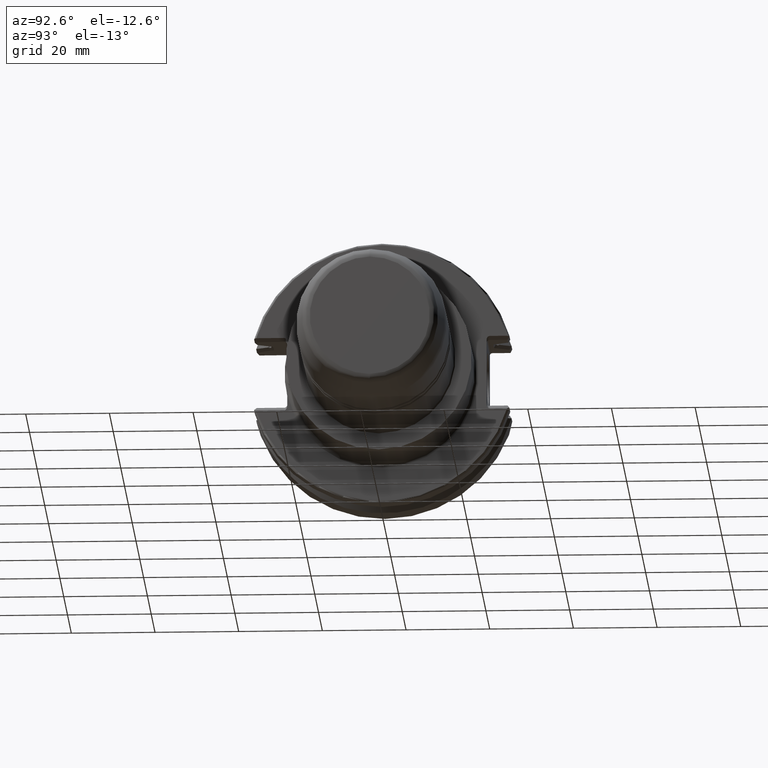
[diagram: clean part render]
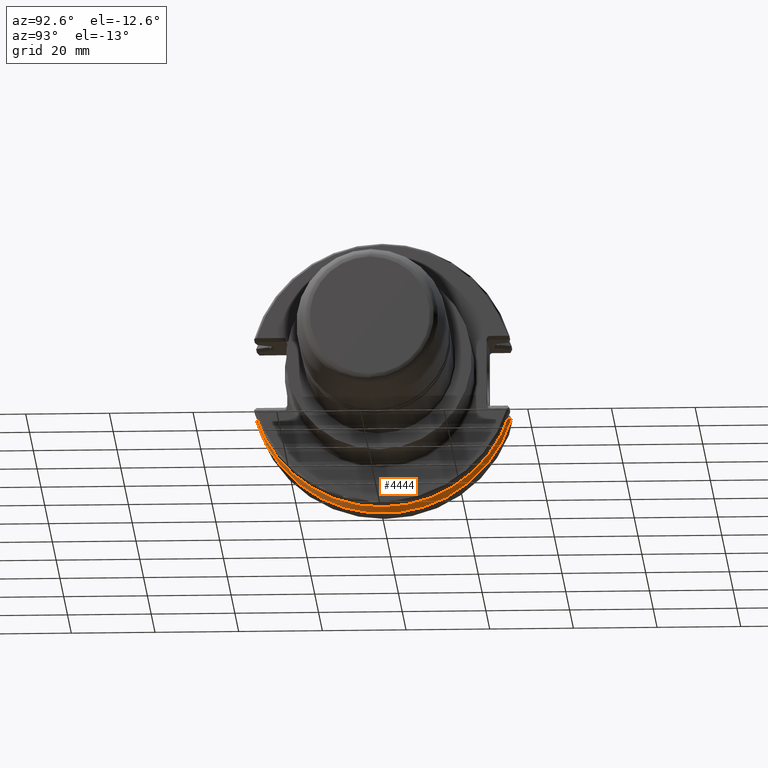
[diagram: same view with one face highlighted and labeled with its STEP entity id]
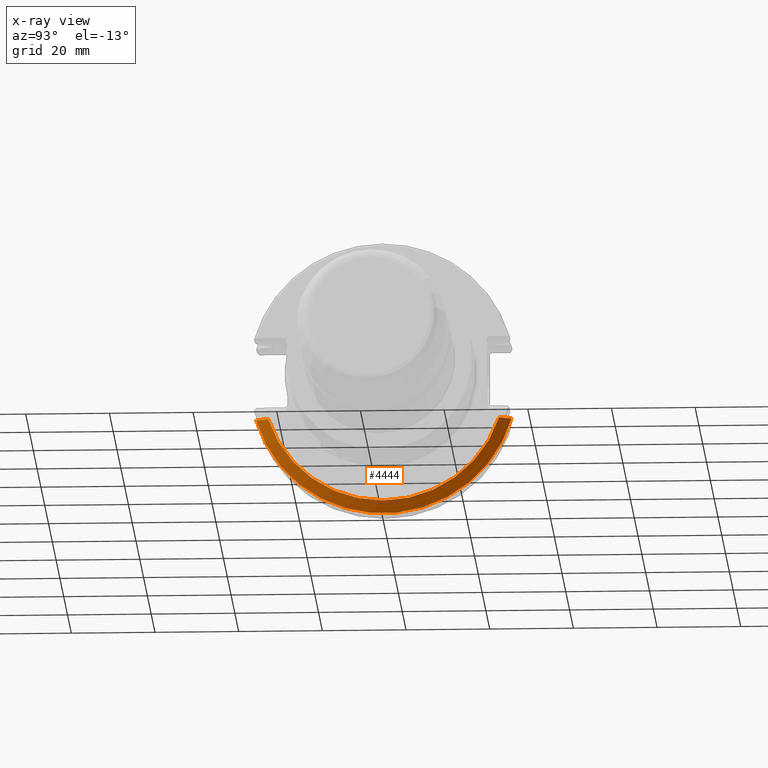
[diagram: x-ray of the same camera — body ghosted, the highlighted face saturated]
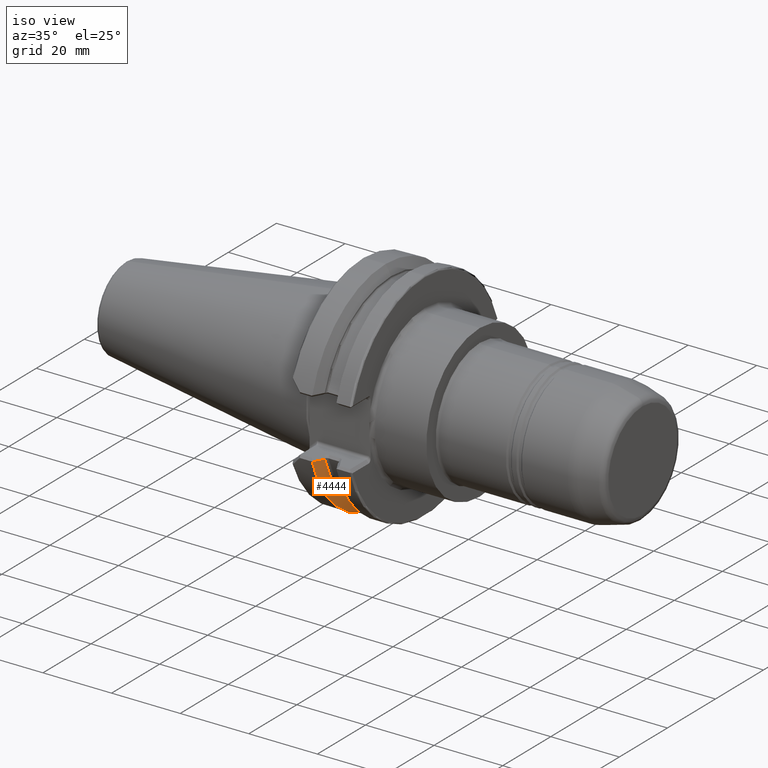
[diagram: same view with one face highlighted and labeled with its STEP entity id]
A machine part, auxiliary view. The second image highlights one B-rep face of the part: STEP entity #4444.
The next image is the same camera in x-ray: the body ghosted, the highlighted face saturated — about 0% of this face is hidden behind the body in this view.
A second angle (iso view) of the same face is appended — the face is thin or edge-on in the first view.
In plain terms, the highlighted conical surface has half-angle 60 deg.
Its self-contained STEP definition (entity closure, byte-faithful):
#69 = EDGE_CURVE ( 'NONE', #3695, #1806, #2569, .T. ) ;
#158 = AXIS2_PLACEMENT_3D ( 'NONE', #2597, #255, #3012 ) ;
#255 = DIRECTION ( 'NONE',  ( -1.000000000000000000, -0.0000000000000000000, -0.0000000000000000000 ) ) ;
#371 = EDGE_CURVE ( 'NONE', #1806, #1999, #3416, .T. ) ;
#756 = CARTESIAN_POINT ( 'NONE',  ( 75.85383323092436600, -30.51805114443487500, -8.758484706024045600 ) ) ;
#1064 = CARTESIAN_POINT ( 'NONE',  ( 77.45500000000001300, 27.58967456083830400, -8.857701354437736500 ) ) ;
#1292 = CARTESIAN_POINT ( 'NONE',  ( 75.85383323092436600, 30.49243720799000100, -8.847246640440568300 ) ) ;
#1495 = AXIS2_PLACEMENT_3D ( 'NONE', #2655, #2257, #4593 ) ;
#1511 = EDGE_CURVE ( 'NONE', #1999, #2678, #2126, .T. ) ;
#1566 = AXIS2_PLACEMENT_3D ( 'NONE', #4420, #2095, #4825 ) ;
#1699 = CARTESIAN_POINT ( 'NONE',  ( 76.94746368036797400, 28.51455250161734900, -8.852626759461236000 ) ) ;
#1768 = CARTESIAN_POINT ( 'NONE',  ( 77.45500000000001300, 27.58967456083830400, -8.857701354437736500 ) ) ;
#1806 = VERTEX_POINT ( 'NONE', #1064 ) ;
#1999 = VERTEX_POINT ( 'NONE', #4773 ) ;
#2095 = DIRECTION ( 'NONE',  ( -1.000000000000000000, -0.0000000000000000000, -0.0000000000000000000 ) ) ;
#2126 = B_SPLINE_CURVE_WITH_KNOTS ( 'NONE', 3,
 ( #4259, #2725, #3121, #756 ),
 .UNSPECIFIED., .F., .F.,
 ( 4, 4 ),
 ( 0.0000000000000000000, 1.000000000000000000 ),
 .UNSPECIFIED. ) ;
#2129 = CIRCLE ( 'NONE', #1566, 31.75000000000000000 ) ;
#2179 = ORIENTED_EDGE ( 'NONE', *, *, #4974, .F. ) ;
#2257 = DIRECTION ( 'NONE',  ( -1.000000000000000000, -0.0000000000000000000, -0.0000000000000000000 ) ) ;
#2556 = CONICAL_SURFACE ( 'NONE', #1495, 28.97669780457007600, 1.047197551196600300 ) ;
#2569 = B_SPLINE_CURVE_WITH_KNOTS ( 'NONE', 3,
 ( #1292, #4793, #1699, #1768 ),
 .UNSPECIFIED., .F., .F.,
 ( 4, 4 ),
 ( 0.0000000000000000000, 1.000000000000000000 ),
 .UNSPECIFIED. ) ;
#2597 = CARTESIAN_POINT ( 'NONE',  ( 77.45500000000001300, 0.0000000000000000000, 0.0000000000000000000 ) ) ;
#2655 = CARTESIAN_POINT ( 'NONE',  ( 77.45500000000001300, 0.0000000000000000000, 0.0000000000000000000 ) ) ;
#2678 = VERTEX_POINT ( 'NONE', #3092 ) ;
#2694 = FACE_OUTER_BOUND ( 'NONE', #2959, .T. ) ;
#2725 = CARTESIAN_POINT ( 'NONE',  ( 76.94746636171943500, -28.54106356036926300, -8.766679964013441400 ) ) ;
#2959 = EDGE_LOOP ( 'NONE', ( #5049, #3534, #2179, #3235 ) ) ;
#3012 = DIRECTION ( 'NONE',  ( 0.0000000000000000000, 0.0000000000000000000, 1.000000000000000000 ) ) ;
#3092 = CARTESIAN_POINT ( 'NONE',  ( 75.85383323092436600, -30.51805114443487500, -8.758484706024045600 ) ) ;
#3121 = CARTESIAN_POINT ( 'NONE',  ( 76.41374410668458900, -29.50764898631634000, -8.763503896160898400 ) ) ;
#3235 = ORIENTED_EDGE ( 'NONE', *, *, #69, .T. ) ;
#3416 = CIRCLE ( 'NONE', #158, 28.97669780457007600 ) ;
#3534 = ORIENTED_EDGE ( 'NONE', *, *, #1511, .T. ) ;
#3695 = VERTEX_POINT ( 'NONE', #3968 ) ;
#3968 = CARTESIAN_POINT ( 'NONE',  ( 75.85383323092436600, 30.49243720799000100, -8.847246640440568300 ) ) ;
#4259 = CARTESIAN_POINT ( 'NONE',  ( 77.45500000000001300, -27.61768156125735300, -8.769987505028844100 ) ) ;
#4420 = CARTESIAN_POINT ( 'NONE',  ( 75.85383323092436600, 0.0000000000000000000, 0.0000000000000000000 ) ) ;
#4444 = ADVANCED_FACE ( 'NONE', ( #2694 ), #2556, .T. ) ;
#4593 = DIRECTION ( 'NONE',  ( 0.0000000000000000000, 0.0000000000000000000, 1.000000000000000000 ) ) ;
#4773 = CARTESIAN_POINT ( 'NONE',  ( 77.45500000000001300, -27.61768156125735300, -8.769987505028844100 ) ) ;
#4793 = CARTESIAN_POINT ( 'NONE',  ( 76.41374143099068300, 29.48188830824573600, -8.849878401103337600 ) ) ;
#4825 = DIRECTION ( 'NONE',  ( 0.0000000000000000000, 0.0000000000000000000, 1.000000000000000000 ) ) ;
#4974 = EDGE_CURVE ( 'NONE', #3695, #2678, #2129, .T. ) ;
#5049 = ORIENTED_EDGE ( 'NONE', *, *, #371, .T. ) ;